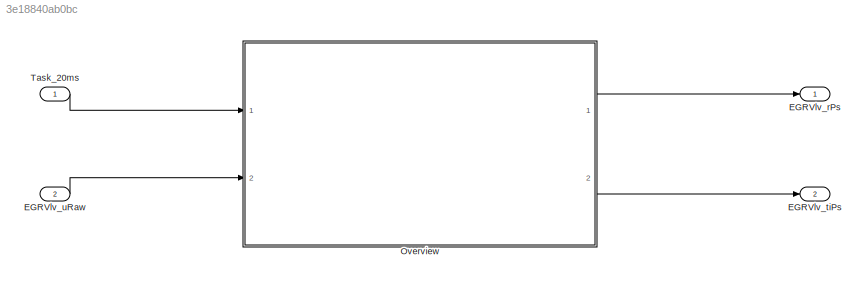
MODEL slx_3e18840ab0bc
KIND model
CONFIG AbsTol = auto
CONFIG EnableMultiTasking = off
CONFIG FixedStep = auto
CONFIG MaxStep = auto
CONFIG MinStep = auto
CONFIG RelTol = 1e-3
CONFIG SampleTimeConstraint = Unconstrained
CONFIG SolverName = VariableStepAuto
CONFIG StartTime = 0.0
CONFIG StopTime = 10.0
BLOCK [Outport] EGRVlv_rPs
BLOCK [Outport] EGRVlv_tiPs
  Port = 2
BLOCK [Inport] EGRVlv_uRaw
  Port = 2
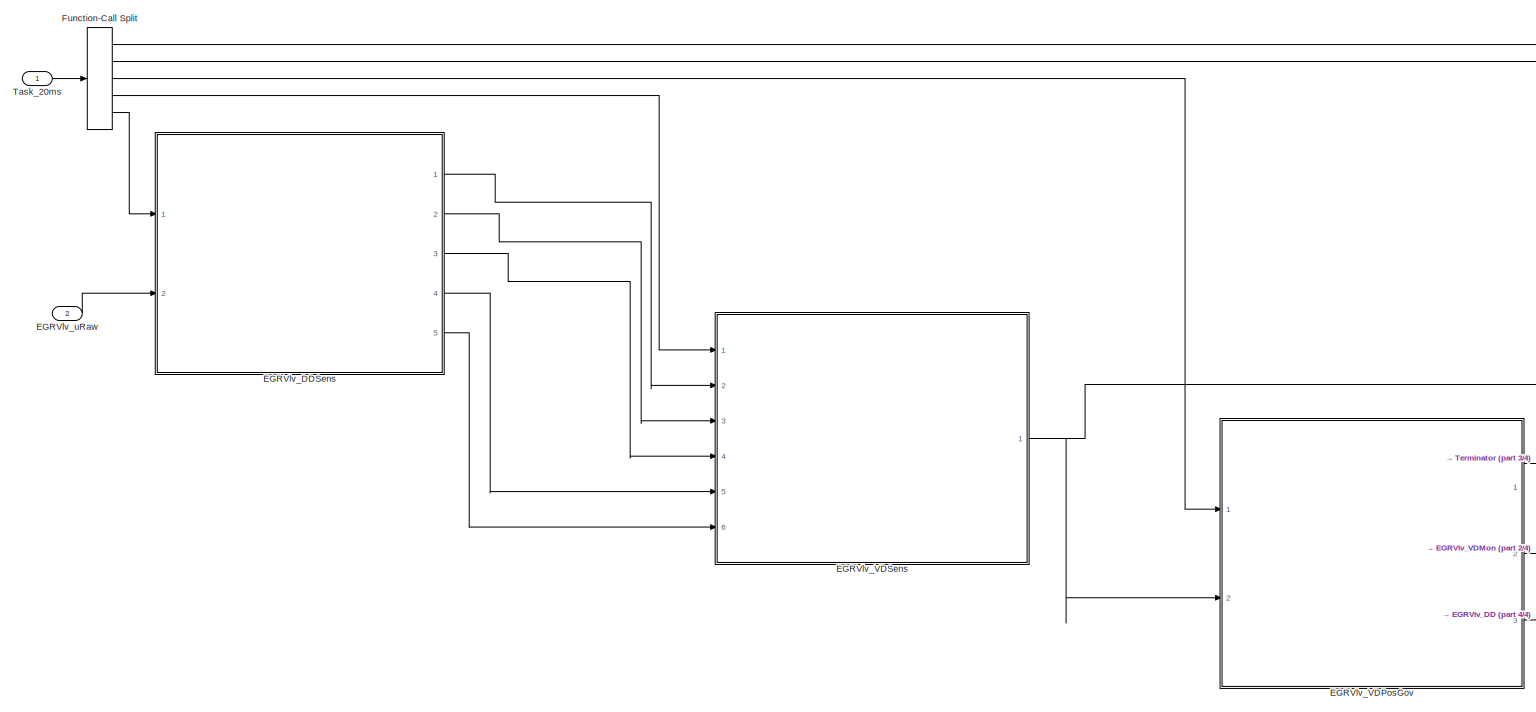
[diagram: Overview - part 1/4, middle left region]
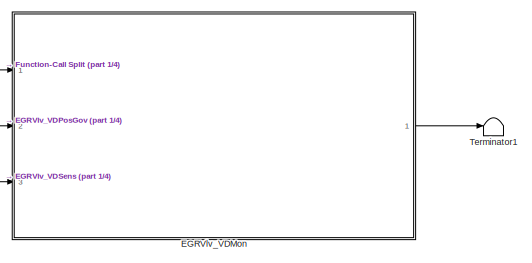
[diagram: Overview - part 2/4, middle right region]
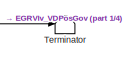
[diagram: Overview - part 3/4, middle right region]
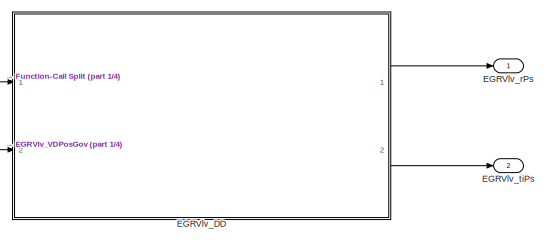
[diagram: Overview - part 4/4, bottom right region]
BLOCK [SubSystem] Overview
  Ports = [2, 2]
  RequestExecContextInheritance = off
BLOCK [ModelReference] Overview/EGRVlv_DD
  ModelNameDialog = EGRVlv_DD
  ModelReferenceVersion = 6.2
  Ports = [2, 2]
  ScheduleRates = on
BLOCK [ModelReference] Overview/EGRVlv_DDSens
  ModelNameDialog = EGRVlv_DDSens
  ModelReferenceVersion = 6.1
  Ports = [2, 5]
  ScheduleRates = on
BLOCK [ModelReference] Overview/EGRVlv_VDMon
  ModelNameDialog = EGRVlv_VDMon
  ModelReferenceVersion = 6.1
  Ports = [3, 1]
  ScheduleRates = on
BLOCK [ModelReference] Overview/EGRVlv_VDPosGov
  ModelNameDialog = EGRVlv_VDPosGov
  ModelReferenceVersion = 6.1
  Ports = [2, 3]
  ScheduleRates = on
BLOCK [ModelReference] Overview/EGRVlv_VDSens
  ModelNameDialog = EGRVlv_VDSens
  ModelReferenceVersion = 6.1
  Ports = [6, 1]
  ScheduleRates = on
BLOCK [Outport] Overview/EGRVlv_rPs
BLOCK [Outport] Overview/EGRVlv_tiPs
  Port = 2
BLOCK [Inport] Overview/EGRVlv_uRaw
  Port = 2
BLOCK [FunctionCallSplit] Overview/Function-Call Split
  IconShape = distinctive
  NumOutputPorts = 5
  OutputPortLayout = default
  Ports = [1, 5]
BLOCK [Inport] Overview/Task_20ms
BLOCK [Terminator] Overview/Terminator
BLOCK [Terminator] Overview/Terminator1
BLOCK [Inport] Task_20ms
  OutputFunctionCall = on
LINE EGRVlv_uRaw:1 -> Overview:2
LINE Overview/EGRVlv_DD:1 -> Overview/EGRVlv_rPs:1
LINE Overview/EGRVlv_DD:2 -> Overview/EGRVlv_tiPs:1
LINE Overview/EGRVlv_DDSens:1 -> Overview/EGRVlv_VDSens:2
LINE Overview/EGRVlv_DDSens:2 -> Overview/EGRVlv_VDSens:3
LINE Overview/EGRVlv_DDSens:3 -> Overview/EGRVlv_VDSens:4
LINE Overview/EGRVlv_DDSens:4 -> Overview/EGRVlv_VDSens:5
LINE Overview/EGRVlv_DDSens:5 -> Overview/EGRVlv_VDSens:6
LINE Overview/EGRVlv_VDMon:1 -> Overview/Terminator1:1
LINE Overview/EGRVlv_VDPosGov:1 -> Overview/Terminator:1
LINE Overview/EGRVlv_VDPosGov:2 -> Overview/EGRVlv_VDMon:2
LINE Overview/EGRVlv_VDPosGov:3 -> Overview/EGRVlv_DD:2
NET Overview/EGRVlv_VDSens:1 -> Overview/EGRVlv_VDMon:3, Overview/EGRVlv_VDPosGov:2
LINE Overview/EGRVlv_uRaw:1 -> Overview/EGRVlv_DDSens:2
LINE Overview/Function-Call Split:1 -> Overview/EGRVlv_VDMon:1
LINE Overview/Function-Call Split:2 -> Overview/EGRVlv_DD:1
LINE Overview/Function-Call Split:3 -> Overview/EGRVlv_VDPosGov:1
LINE Overview/Function-Call Split:4 -> Overview/EGRVlv_VDSens:1
LINE Overview/Function-Call Split:5 -> Overview/EGRVlv_DDSens:1
LINE Overview/Task_20ms:1 -> Overview/Function-Call Split:1
LINE Overview:1 -> EGRVlv_rPs:1
LINE Overview:2 -> EGRVlv_tiPs:1
LINE Task_20ms:1 -> Overview:1
note: NET lines group one-source signal fan-out (src -> all destinations, sorted); 1:1 wires keep LINE
